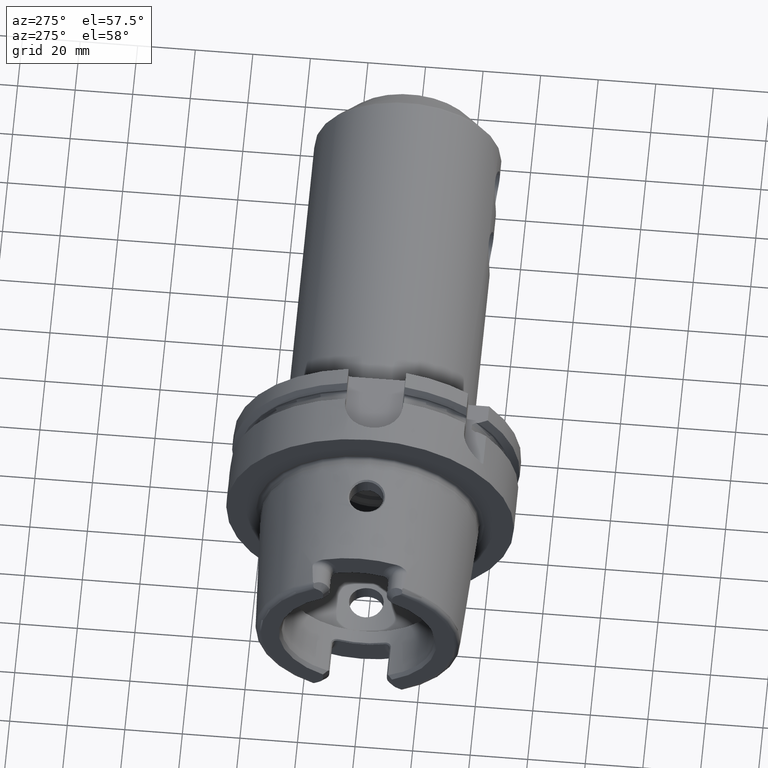
[diagram: clean part render]
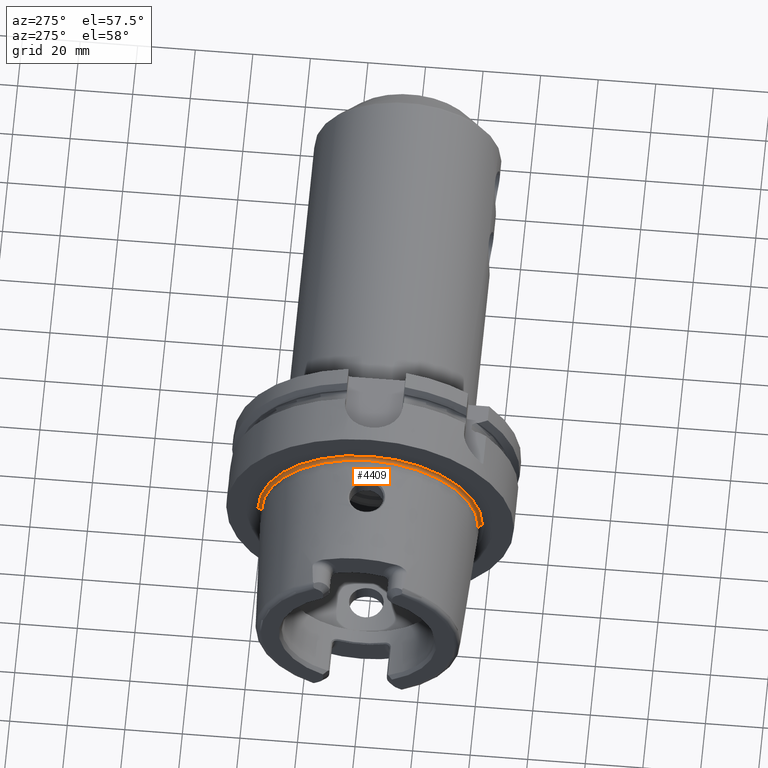
[diagram: same view with one face highlighted and labeled with its STEP entity id]
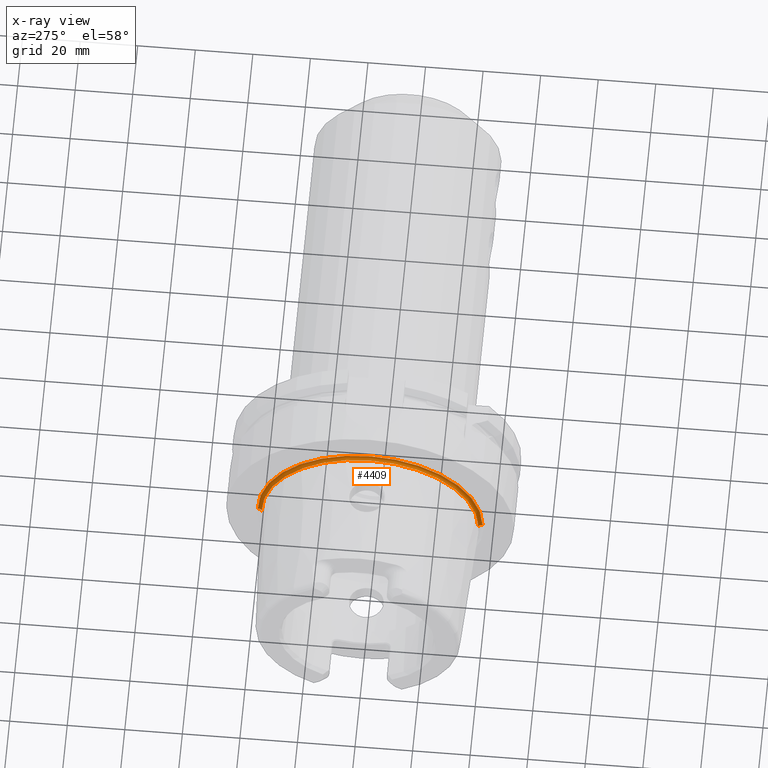
[diagram: x-ray of the same camera — body ghosted, the highlighted face saturated]
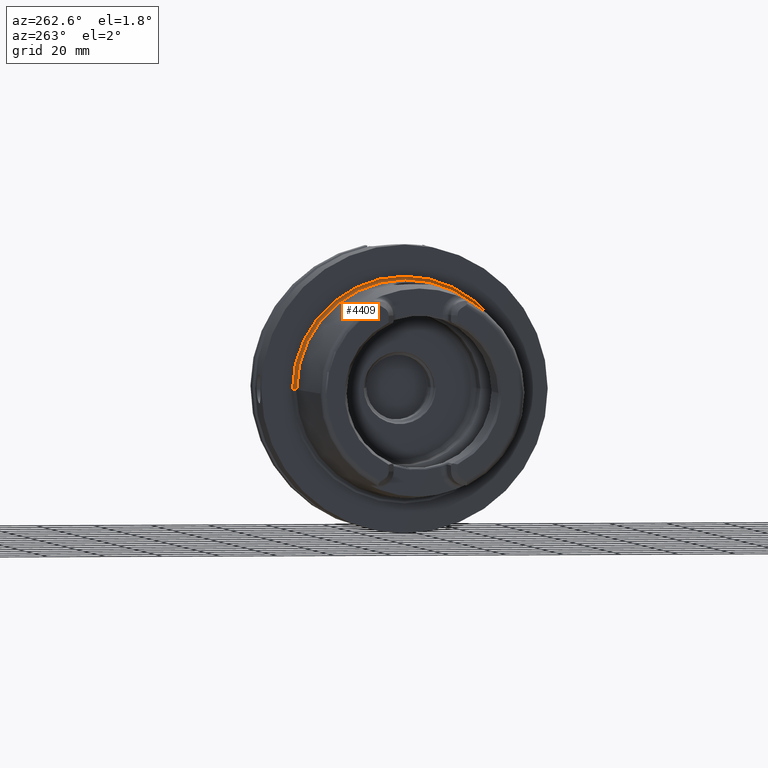
[diagram: same view with one face highlighted and labeled with its STEP entity id]
A machine part, auxiliary view. The second image highlights one B-rep face of the part: STEP entity #4409.
The next image is the same camera in x-ray: the body ghosted, the highlighted face saturated — about 0% of this face is hidden behind the body in this view.
A second angle (auxiliary view) of the same face is appended — the face is thin or edge-on in the first view.
In plain terms, the highlighted toroidal blend (fillet) surface has major radius 38.6823 mm and minor (blend) radius 1 mm.
Its self-contained STEP definition (entity closure, byte-faithful):
#872=CARTESIAN_POINT('',(-7.005712886803E-1,0.E0,0.E0));
#873=DIRECTION('',(-1.E0,0.E0,0.E0));
#874=DIRECTION('',(0.E0,-1.E0,0.E0));
#875=AXIS2_PLACEMENT_3D('',#872,#873,#874);
#877=CARTESIAN_POINT('',(2.298462793018E-1,0.E0,0.E0));
#878=DIRECTION('',(-1.E0,0.E0,0.E0));
#879=DIRECTION('',(0.E0,-1.E0,0.E0));
#880=AXIS2_PLACEMENT_3D('',#877,#878,#879);
#882=CARTESIAN_POINT('',(-7.005712886803E-1,3.868225E1,0.E0));
#883=DIRECTION('',(0.E0,0.E0,-1.E0));
#884=DIRECTION('',(9.304175679820E-1,3.665012267243E-1,0.E0));
#885=AXIS2_PLACEMENT_3D('',#882,#883,#884);
#887=CARTESIAN_POINT('',(-7.005712886803E-1,-3.868225E1,0.E0));
#888=DIRECTION('',(0.E0,0.E0,1.E0));
#889=DIRECTION('',(9.304175679820E-1,-3.665012267243E-1,0.E0));
#890=AXIS2_PLACEMENT_3D('',#887,#888,#889);
#3021=CARTESIAN_POINT('',(2.298462793018E-1,-3.904875122672E1,0.E0));
#3022=CARTESIAN_POINT('',(-7.005712886803E-1,-3.768225E1,0.E0));
#3023=VERTEX_POINT('',#3021);
#3024=VERTEX_POINT('',#3022);
#3029=CARTESIAN_POINT('',(2.298462793018E-1,3.904875122672E1,0.E0));
#3030=CARTESIAN_POINT('',(-7.005712886803E-1,3.768225E1,0.E0));
#3031=VERTEX_POINT('',#3029);
#3032=VERTEX_POINT('',#3030);
#4395=CARTESIAN_POINT('',(-7.005712886803E-1,0.E0,0.E0));
#4396=DIRECTION('',(-1.E0,0.E0,0.E0));
#4397=DIRECTION('',(0.E0,1.E0,0.E0));
#4398=AXIS2_PLACEMENT_3D('',#4395,#4396,#4397);
#4399=TOROIDAL_SURFACE('',#4398,3.868225E1,1.E0);
#4401=ORIENTED_EDGE('',*,*,#4400,.T.);
#4402=ORIENTED_EDGE('',*,*,#4390,.T.);
#4404=ORIENTED_EDGE('',*,*,#4403,.F.);
#4406=ORIENTED_EDGE('',*,*,#4405,.F.);
#4407=EDGE_LOOP('',(#4401,#4402,#4404,#4406));
#4408=FACE_OUTER_BOUND('',#4407,.F.);
#4409=ADVANCED_FACE('',(#4408),#4399,.F.);
#876=CIRCLE('',#875,3.768225E1);
#881=CIRCLE('',#880,3.904875122672E1);
#886=CIRCLE('',#885,1.E0);
#891=CIRCLE('',#890,1.E0);
#4390=EDGE_CURVE('',#3024,#3032,#876,.T.);
#4400=EDGE_CURVE('',#3023,#3024,#891,.T.);
#4403=EDGE_CURVE('',#3031,#3032,#886,.T.);
#4405=EDGE_CURVE('',#3023,#3031,#881,.T.);